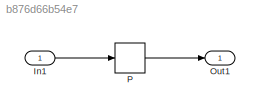
MODEL slx_b876d66b54e7
KIND model
CONFIG AbsTol = auto
CONFIG EnableMultiTasking = off
CONFIG FixedStep = auto
CONFIG MaxStep = auto
CONFIG MinStep = auto
CONFIG RelTol = 1e-3
CONFIG SampleTimeConstraint = Unconstrained
CONFIG Solver = FixedStepDiscrete
CONFIG SolverName = FixedStepDiscrete
CONFIG StartTime = 0.0
CONFIG StopTime = 10.0
BLOCK [Inport] In1
  IconDisplay = Port number
  PortDimensions = 7
BLOCK [Outport] Out1
  IconDisplay = Port number
BLOCK [Lookup_n-D] P
  BreakpointsForDimension1FirstPoint = 28.2404
  BreakpointsForDimension1Spacing = 1.5
  BreakpointsForDimension2FirstPoint = 8.8299
  BreakpointsForDimension2Spacing = 1.5
  BreakpointsForDimension3 = [5, 7]
  BreakpointsForDimension3FirstPoint = 91.8218
  BreakpointsForDimension3Spacing = 1.5
  BreakpointsForDimension4FirstPoint = 27.0997
  BreakpointsForDimension4Spacing = 1.5
  BreakpointsForDimension5FirstPoint = 37.7209
  BreakpointsForDimension5Spacing = 1.5
  BreakpointsForDimension6FirstPoint = 73.1524
  BreakpointsForDimension6Spacing = 1.5
  BreakpointsForDimension7FirstPoint = 96.7069
  BreakpointsForDimension7Spacing = 1.5
  BreakpointsSpecification = Even spacing
  InternalRulePriority = Speed
  InterpMethod = Flat
  NumberOfTableDimensions = 7
  Ports = [1, 1]
  RndMeth = Simplest
  Table = reshape(repmat([4 5 6 7 8;16 19 20 21 22;10 18 23 24 25],18,8),[2,5,3,2,3,4,3])
  UseOneInputPortForAllInputData = on
LINE In1:1 -> P:1
LINE P:1 -> Out1:1
